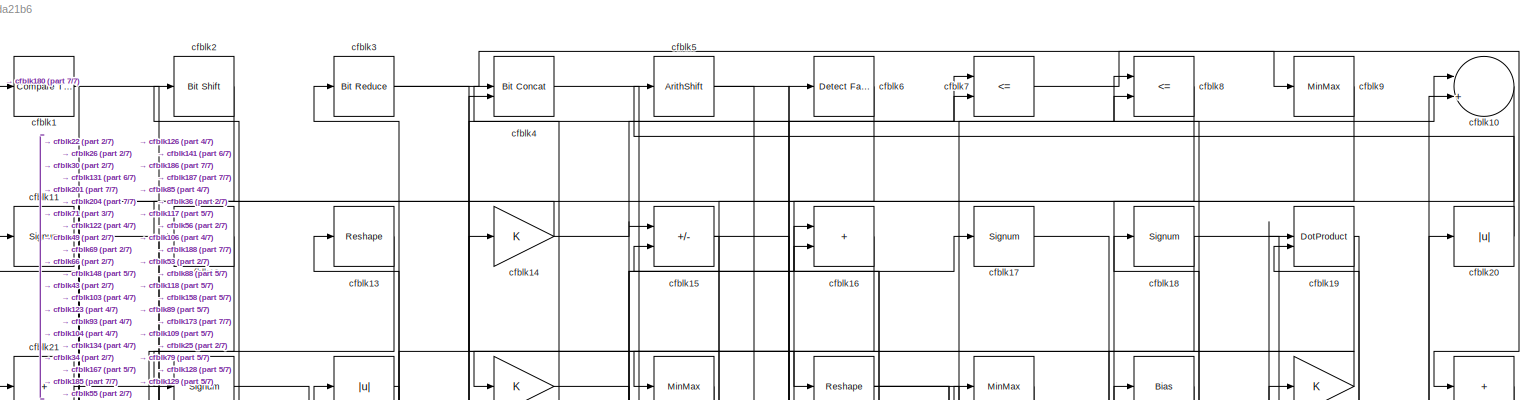
[diagram: root canvas - part 1/7, full width, top band]
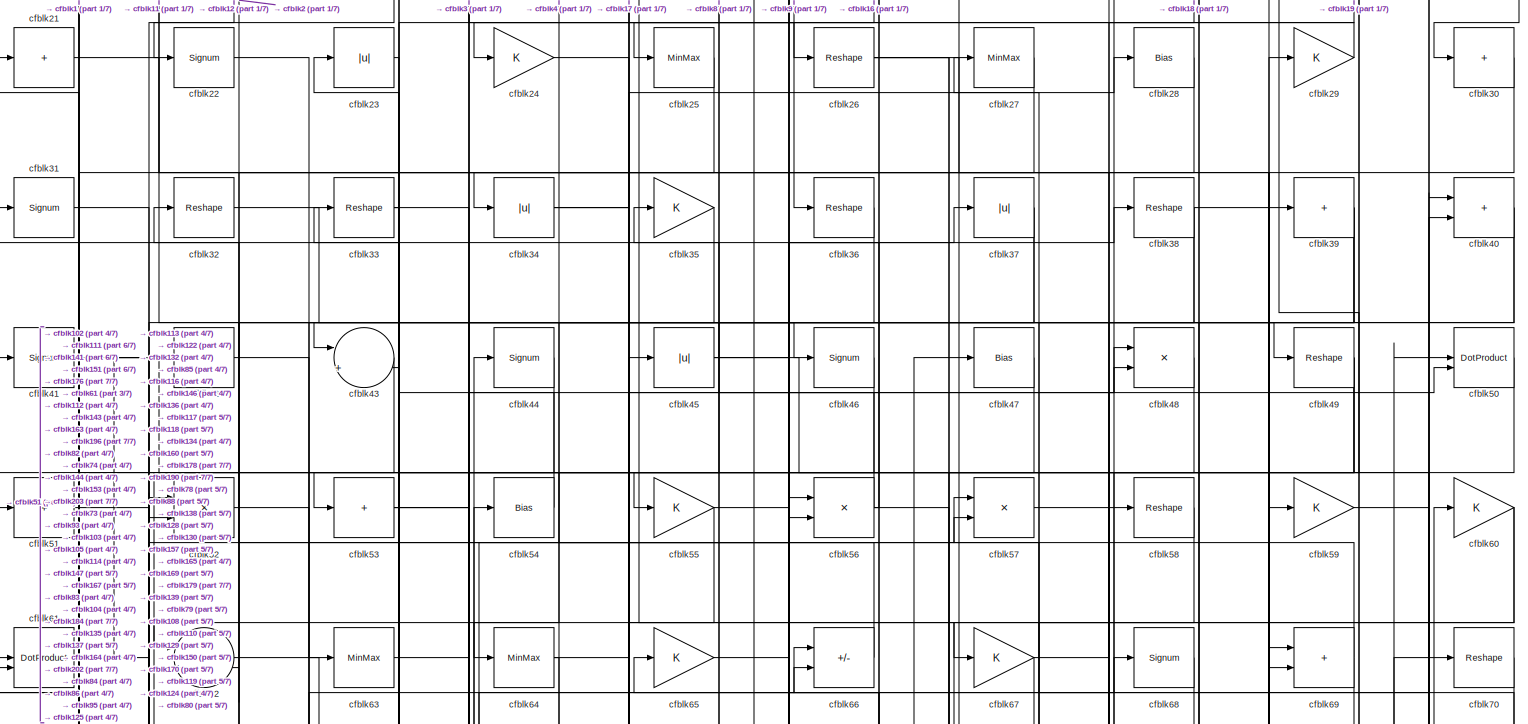
[diagram: root canvas - part 2/7, full width, top band]
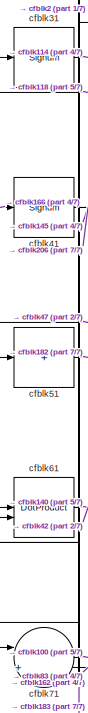
[diagram: root canvas - part 3/7, top left region]
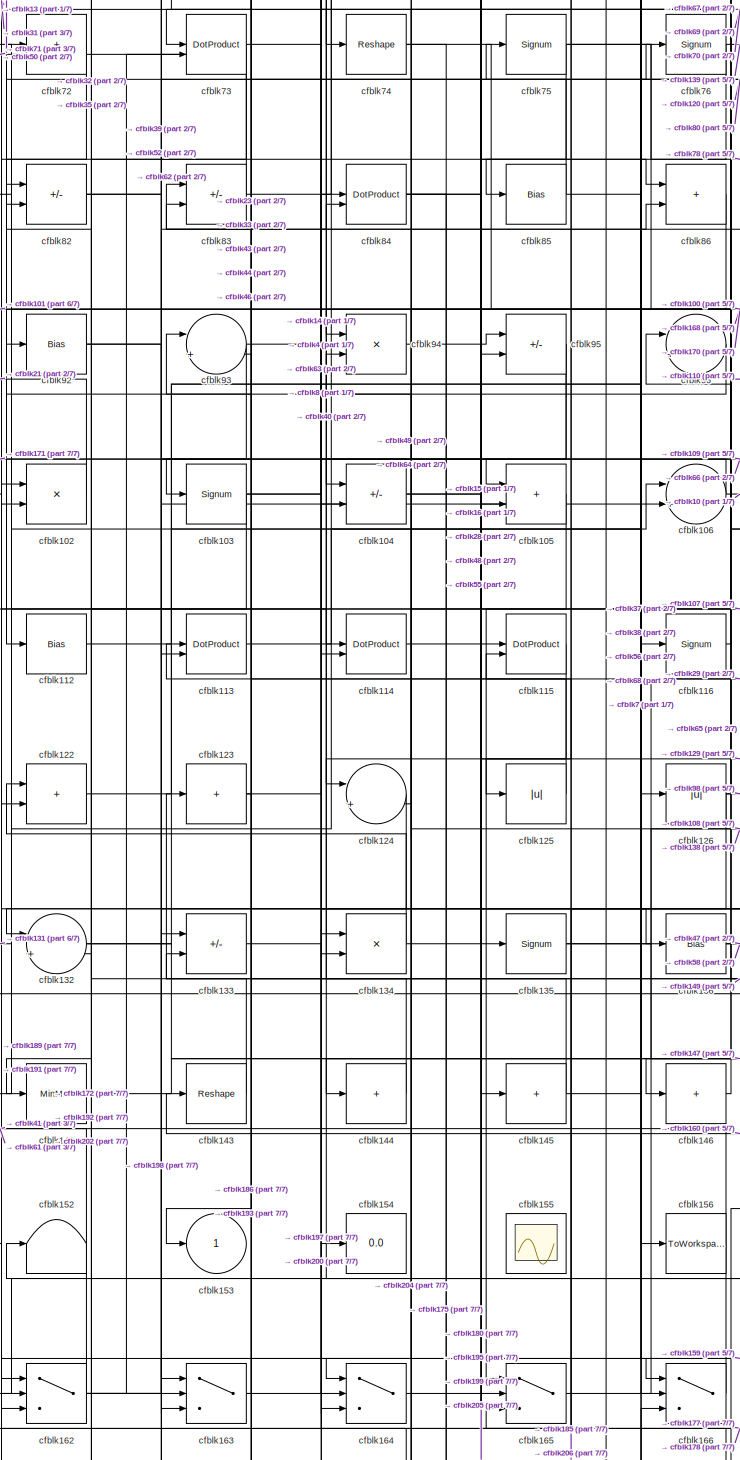
[diagram: root canvas - part 4/7, central region]
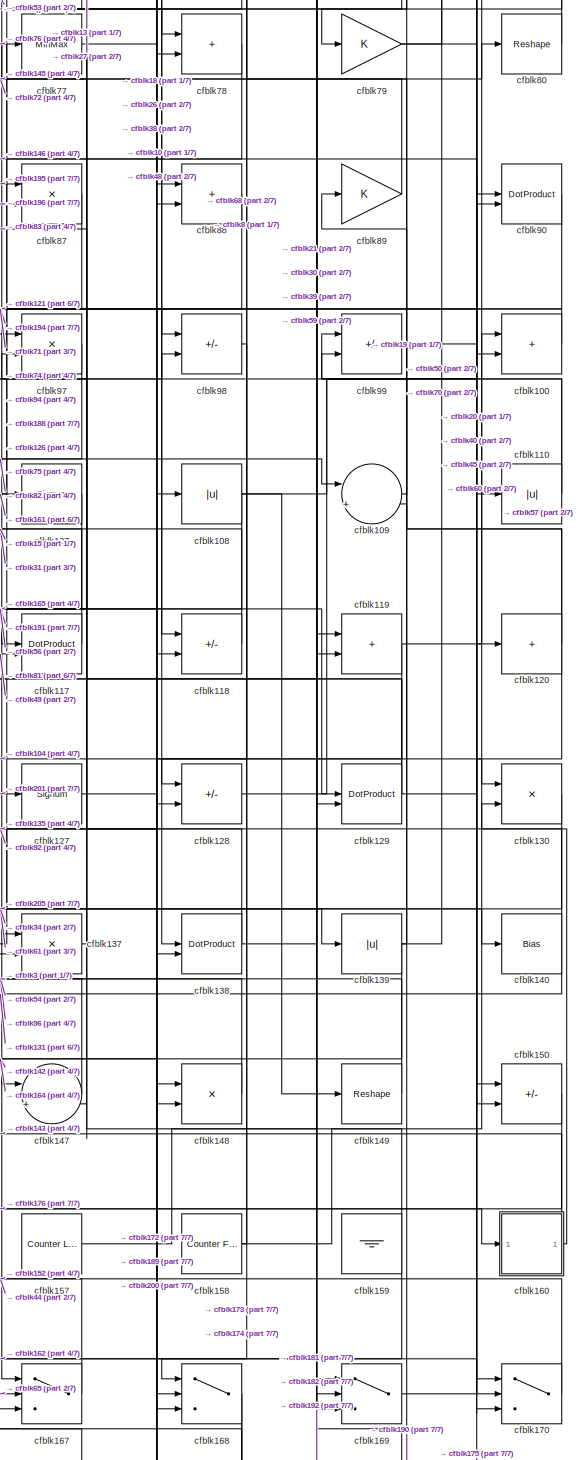
[diagram: root canvas - part 5/7, middle right region]
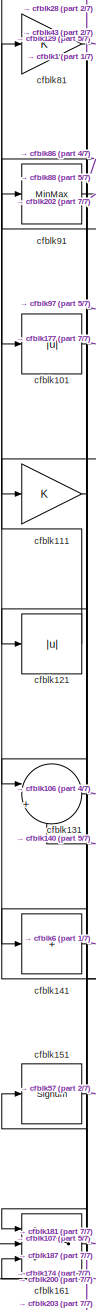
[diagram: root canvas - part 6/7, middle left region]
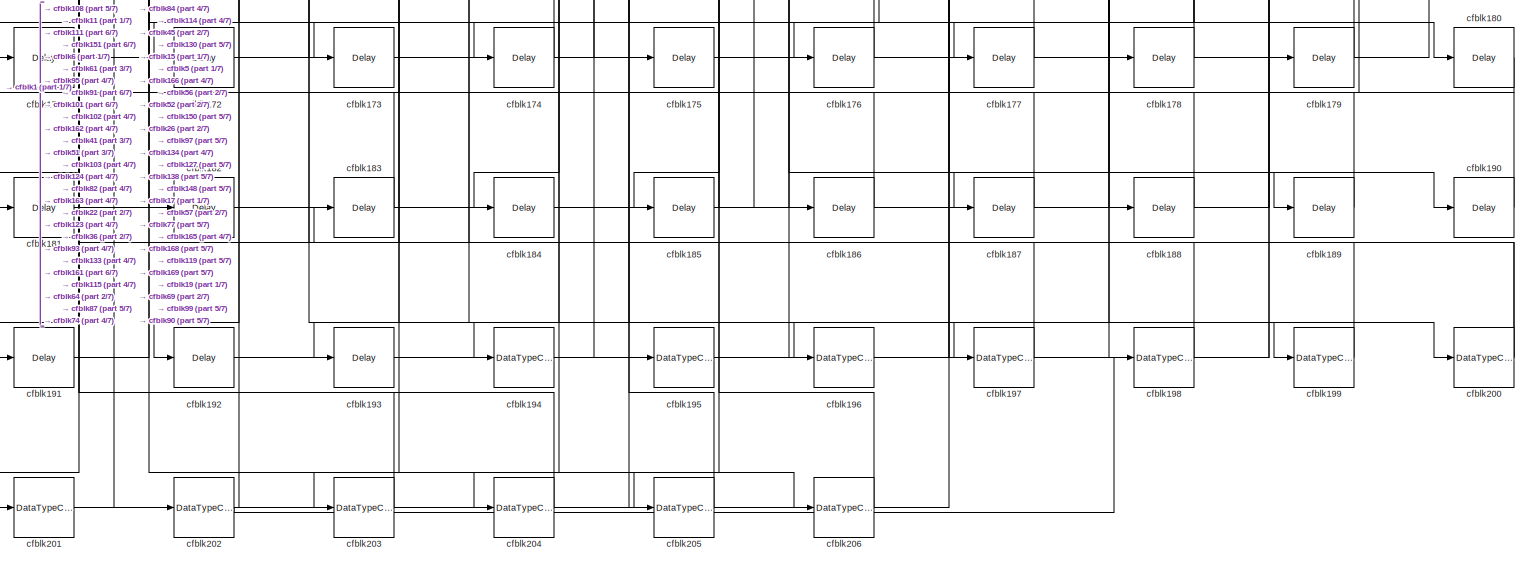
[diagram: root canvas - part 7/7, full width, bottom band]
MODEL slx_e3c43ada21b6
KIND model
CONFIG AbsTol = auto
CONFIG EnableMultiTasking = off
CONFIG FixedStep = auto
CONFIG MaxStep = auto
CONFIG MinStep = auto
CONFIG RelTol = 1e-3
CONFIG SampleTimeConstraint = Unconstrained
CONFIG SolverName = VariableStepAuto
CONFIG StartTime = 0.0
CONFIG StopTime = 10.0
BLOCK [Reference] cfblk1  REF=hdlsllib/Logic and Bit
Operations/Compare
To Zero
  SourceBlock = hdlsllib/Logic and Bit\nOperations/Compare\nTo Zero
  SourceType = Compare To Zero
BLOCK [Sum] cfblk10
  Inputs = |++
BLOCK [Sum] cfblk100
  IconShape = rectangular
BLOCK [Abs] cfblk101
  SaturateOnIntegerOverflow = off
BLOCK [Product] cfblk102
  Inputs = */
  RndMeth = Zero
  SaturateOnIntegerOverflow = on
BLOCK [Signum] cfblk103
BLOCK [Sum] cfblk104
  IconShape = rectangular
  Inputs = +-
BLOCK [Sum] cfblk105
  IconShape = rectangular
BLOCK [Sum] cfblk106
  Inputs = |++
BLOCK [Signum] cfblk107
BLOCK [Abs] cfblk108
  SaturateOnIntegerOverflow = off
BLOCK [Sum] cfblk109
  Inputs = |++
BLOCK [Signum] cfblk11
BLOCK [Abs] cfblk110
  SaturateOnIntegerOverflow = off
BLOCK [Gain] cfblk111
BLOCK [Bias] cfblk112
  Bias = 0.0
  SaturateOnIntegerOverflow = off
BLOCK [DotProduct] cfblk113
  OutDataTypeStr = Inherit: Inherit via internal rule
BLOCK [DotProduct] cfblk114
  OutDataTypeStr = Inherit: Inherit via internal rule
BLOCK [DotProduct] cfblk115
  OutDataTypeStr = Inherit: Inherit via internal rule
BLOCK [Signum] cfblk116
BLOCK [DotProduct] cfblk117
  OutDataTypeStr = Inherit: Inherit via internal rule
BLOCK [Sum] cfblk118
  IconShape = rectangular
  Inputs = +-
BLOCK [Sum] cfblk119
  IconShape = rectangular
BLOCK [Sum] cfblk12
  IconShape = rectangular
  Inputs = +
BLOCK [Sum] cfblk120
  IconShape = rectangular
  Inputs = +
BLOCK [Abs] cfblk121
  SaturateOnIntegerOverflow = off
BLOCK [Sum] cfblk122
  IconShape = rectangular
BLOCK [Sum] cfblk123
  IconShape = rectangular
  Inputs = +
BLOCK [Sum] cfblk124
  Inputs = |++
BLOCK [Abs] cfblk125
  SaturateOnIntegerOverflow = off
BLOCK [Abs] cfblk126
  SaturateOnIntegerOverflow = off
BLOCK [Signum] cfblk127
BLOCK [Sum] cfblk128
  IconShape = rectangular
  Inputs = +-
BLOCK [DotProduct] cfblk129
  OutDataTypeStr = Inherit: Inherit via internal rule
BLOCK [Reshape] cfblk13
BLOCK [Product] cfblk130
  Inputs = */
  RndMeth = Zero
  SaturateOnIntegerOverflow = on
BLOCK [Sum] cfblk131
  Inputs = |++
BLOCK [Sum] cfblk132
  Inputs = |++
BLOCK [Sum] cfblk133
  IconShape = rectangular
  Inputs = +-
BLOCK [Product] cfblk134
  Inputs = */
  RndMeth = Zero
  SaturateOnIntegerOverflow = on
BLOCK [Signum] cfblk135
BLOCK [Bias] cfblk136
  Bias = 0.0
  SaturateOnIntegerOverflow = off
BLOCK [Product] cfblk137
  Inputs = */
  RndMeth = Zero
  SaturateOnIntegerOverflow = on
BLOCK [DotProduct] cfblk138
  OutDataTypeStr = Inherit: Inherit via internal rule
BLOCK [Abs] cfblk139
  SaturateOnIntegerOverflow = off
BLOCK [Gain] cfblk14
BLOCK [Bias] cfblk140
  Bias = 0.0
  SaturateOnIntegerOverflow = off
BLOCK [Sum] cfblk141
  IconShape = rectangular
  Inputs = +
BLOCK [MinMax] cfblk142
BLOCK [Reshape] cfblk143
BLOCK [Sum] cfblk144
  IconShape = rectangular
  Inputs = +
BLOCK [Sum] cfblk145
  IconShape = rectangular
  Inputs = +
BLOCK [Sum] cfblk146
  IconShape = rectangular
  Inputs = +
BLOCK [Sum] cfblk147
  Inputs = |++
BLOCK [Product] cfblk148
  Inputs = */
  RndMeth = Zero
  SaturateOnIntegerOverflow = on
BLOCK [Reshape] cfblk149
BLOCK [Sum] cfblk15
  IconShape = rectangular
  Inputs = +-
BLOCK [Sum] cfblk150
  IconShape = rectangular
  Inputs = +-
BLOCK [Signum] cfblk151
BLOCK [Terminator] cfblk152
BLOCK [Outport] cfblk153
  VectorParamsAs1DForOutWhenUnconnected = off
BLOCK [Display] cfblk154
  Decimation = 1
BLOCK [Scope] cfblk155
  Floating = on
  NumInputPorts = 1
  ScopeSpecificationString = Simulink.scopes.TimeScopeBlockCfg('CurrentConfiguration', extmgr.ConfigurationSet(extmgr.Configuration('Core','General UI',true,'FigureColor',[0.156862745098039 0.156862745098039 0.156862745098039]),extmgr.Configuration('Core','Source UI',true),extmgr.Configuration('Sources','WiredSimulink',true,'DataLoggingVariableName','ScopeData1','DataLoggingSaveFormat','StructureWithTime','DataLoggingLimitDat...<+2713ch>
BLOCK [ToWorkspace] cfblk156
  MaxDataPoints = inf
  SampleTime = -1
  SaveFormat = Timeseries
  VariableName = simout
BLOCK [Reference] cfblk157  REF=hdlsllib/Sources/Counter
Limited
  SourceBlock = hdlsllib/Sources/Counter\nLimited
  SourceType = Counter Limited
BLOCK [Reference] cfblk158  REF=hdlsllib/Sources/Counter
Free-Running
  SourceBlock = hdlsllib/Sources/Counter\nFree-Running
  SourceType = Counter Free-Running
BLOCK [Ground] cfblk159
BLOCK [Sum] cfblk16
  IconShape = rectangular
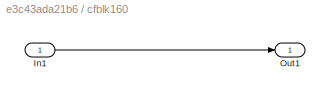
BLOCK [SubSystem] cfblk160
  LibrarySourceBlock = hdlsllib/Ports &\nSubsystems/Subsystem
BLOCK [Inport] cfblk160/In1
BLOCK [Outport] cfblk160/Out1
BLOCK [Switch] cfblk161
  InputSameDT = off
  SaturateOnIntegerOverflow = off
BLOCK [Switch] cfblk162
  InputSameDT = off
  SaturateOnIntegerOverflow = off
BLOCK [Switch] cfblk163
  InputSameDT = off
  SaturateOnIntegerOverflow = off
BLOCK [Switch] cfblk164
  InputSameDT = off
  SaturateOnIntegerOverflow = off
BLOCK [Switch] cfblk165
  InputSameDT = off
  SaturateOnIntegerOverflow = off
BLOCK [Switch] cfblk166
  InputSameDT = off
  SaturateOnIntegerOverflow = off
BLOCK [Switch] cfblk167
  InputSameDT = off
  SaturateOnIntegerOverflow = off
BLOCK [Switch] cfblk168
  InputSameDT = off
  SaturateOnIntegerOverflow = off
BLOCK [Switch] cfblk169
  InputSameDT = off
  SaturateOnIntegerOverflow = off
BLOCK [Signum] cfblk17
BLOCK [Switch] cfblk170
  InputSameDT = off
  SaturateOnIntegerOverflow = off
BLOCK [Delay] cfblk171
  InputPortMap = u0
  SampleTime = 1
BLOCK [Delay] cfblk172
  InputPortMap = u0
  SampleTime = 1
BLOCK [Delay] cfblk173
  InputPortMap = u0
  SampleTime = 1
BLOCK [Delay] cfblk174
  InputPortMap = u0
  SampleTime = 1
BLOCK [Delay] cfblk175
  InputPortMap = u0
  SampleTime = 1
BLOCK [Delay] cfblk176
  InputPortMap = u0
  SampleTime = 1
BLOCK [Delay] cfblk177
  InputPortMap = u0
  SampleTime = 1
BLOCK [Delay] cfblk178
  InputPortMap = u0
  SampleTime = 1
BLOCK [Delay] cfblk179
  InputPortMap = u0
  SampleTime = 1
BLOCK [Signum] cfblk18
BLOCK [Delay] cfblk180
  InputPortMap = u0
  SampleTime = 1
BLOCK [Delay] cfblk181
  InputPortMap = u0
  SampleTime = 1
BLOCK [Delay] cfblk182
  InputPortMap = u0
  SampleTime = 1
BLOCK [Delay] cfblk183
  InputPortMap = u0
  SampleTime = 1
BLOCK [Delay] cfblk184
  InputPortMap = u0
  SampleTime = 1
BLOCK [Delay] cfblk185
  InputPortMap = u0
  SampleTime = 1
BLOCK [Delay] cfblk186
  InputPortMap = u0
  SampleTime = 1
BLOCK [Delay] cfblk187
  InputPortMap = u0
  SampleTime = 1
BLOCK [Delay] cfblk188
  InputPortMap = u0
  SampleTime = 1
BLOCK [Delay] cfblk189
  InputPortMap = u0
  SampleTime = 1
BLOCK [DotProduct] cfblk19
  OutDataTypeStr = Inherit: Inherit via internal rule
BLOCK [Delay] cfblk190
  InputPortMap = u0
  SampleTime = 1
BLOCK [Delay] cfblk191
  InputPortMap = u0
  SampleTime = 1
BLOCK [Delay] cfblk192
  InputPortMap = u0
  SampleTime = 1
BLOCK [Delay] cfblk193
  InputPortMap = u0
  SampleTime = 1
BLOCK [DataTypeConversion] cfblk194
  RndMeth = Floor
  SaturateOnIntegerOverflow = off
BLOCK [DataTypeConversion] cfblk195
  OutDataTypeStr = uint8
  RndMeth = Floor
  SaturateOnIntegerOverflow = off
BLOCK [DataTypeConversion] cfblk196
  OutDataTypeStr = uint8
  RndMeth = Floor
  SaturateOnIntegerOverflow = off
BLOCK [DataTypeConversion] cfblk197
  OutDataTypeStr = uint8
  RndMeth = Floor
  SaturateOnIntegerOverflow = off
BLOCK [DataTypeConversion] cfblk198
  OutDataTypeStr = uint8
  RndMeth = Floor
  SaturateOnIntegerOverflow = off
BLOCK [DataTypeConversion] cfblk199
  OutDataTypeStr = uint8
  RndMeth = Floor
  SaturateOnIntegerOverflow = off
BLOCK [Reference] cfblk2  REF=hdlsllib/Logic and Bit
Operations/Bit Shift
  SourceBlock = hdlsllib/Logic and Bit\nOperations/Bit Shift
  SourceType = Bit Shift
BLOCK [Abs] cfblk20
  SaturateOnIntegerOverflow = off
BLOCK [DataTypeConversion] cfblk200
  RndMeth = Floor
  SaturateOnIntegerOverflow = off
BLOCK [DataTypeConversion] cfblk201
  OutDataTypeStr = uint8
  RndMeth = Floor
  SaturateOnIntegerOverflow = off
BLOCK [DataTypeConversion] cfblk202
  RndMeth = Floor
  SaturateOnIntegerOverflow = off
BLOCK [DataTypeConversion] cfblk203
  OutDataTypeStr = uint8
  RndMeth = Floor
  SaturateOnIntegerOverflow = off
BLOCK [DataTypeConversion] cfblk204
  OutDataTypeStr = uint8
  RndMeth = Floor
  SaturateOnIntegerOverflow = off
BLOCK [DataTypeConversion] cfblk205
  OutDataTypeStr = uint8
  RndMeth = Floor
  SaturateOnIntegerOverflow = off
BLOCK [DataTypeConversion] cfblk206
  OutDataTypeStr = uint8
  RndMeth = Floor
  SaturateOnIntegerOverflow = off
BLOCK [Sum] cfblk21
  IconShape = rectangular
  Inputs = +
BLOCK [Signum] cfblk22
BLOCK [Abs] cfblk23
  SaturateOnIntegerOverflow = off
BLOCK [Gain] cfblk24
BLOCK [MinMax] cfblk25
BLOCK [Reshape] cfblk26
BLOCK [MinMax] cfblk27
BLOCK [Bias] cfblk28
  Bias = 0.0
  SaturateOnIntegerOverflow = off
BLOCK [Gain] cfblk29
BLOCK [Reference] cfblk3  REF=hdlsllib/Logic and Bit
Operations/Bit Reduce
  SourceBlock = hdlsllib/Logic and Bit\nOperations/Bit Reduce
  SourceType = Bit Reduce
BLOCK [Sum] cfblk30
  IconShape = rectangular
  Inputs = +
BLOCK [Signum] cfblk31
BLOCK [Reshape] cfblk32
BLOCK [Reshape] cfblk33
BLOCK [Abs] cfblk34
  SaturateOnIntegerOverflow = off
BLOCK [Gain] cfblk35
BLOCK [Reshape] cfblk36
BLOCK [Abs] cfblk37
  SaturateOnIntegerOverflow = off
BLOCK [Reshape] cfblk38
BLOCK [Sum] cfblk39
  IconShape = rectangular
  Inputs = +
BLOCK [Reference] cfblk4  REF=hdlsllib/Logic and Bit
Operations/Bit Concat
  SourceBlock = hdlsllib/Logic and Bit\nOperations/Bit Concat
  SourceType = Bit Concat
BLOCK [Sum] cfblk40
  IconShape = rectangular
BLOCK [Signum] cfblk41
BLOCK [Sum] cfblk42
  IconShape = rectangular
  Inputs = +
BLOCK [Sum] cfblk43
  Inputs = |++
BLOCK [Signum] cfblk44
BLOCK [Abs] cfblk45
  SaturateOnIntegerOverflow = off
BLOCK [Signum] cfblk46
BLOCK [Bias] cfblk47
  Bias = 0.0
  SaturateOnIntegerOverflow = off
BLOCK [Product] cfblk48
  Inputs = */
  RndMeth = Zero
  SaturateOnIntegerOverflow = on
BLOCK [Reshape] cfblk49
BLOCK [ArithShift] cfblk5
  BitShiftNumber = 8
  InputPortMap = u0
BLOCK [DotProduct] cfblk50
  OutDataTypeStr = Inherit: Inherit via internal rule
BLOCK [Sum] cfblk51
  IconShape = rectangular
  Inputs = +
BLOCK [Product] cfblk52
  Inputs = */
  RndMeth = Zero
  SaturateOnIntegerOverflow = on
BLOCK [Sum] cfblk53
  IconShape = rectangular
  Inputs = +
BLOCK [Bias] cfblk54
  Bias = 0.0
  SaturateOnIntegerOverflow = off
BLOCK [Gain] cfblk55
BLOCK [Product] cfblk56
  Inputs = */
  RndMeth = Zero
  SaturateOnIntegerOverflow = on
BLOCK [Product] cfblk57
  Inputs = */
  RndMeth = Zero
  SaturateOnIntegerOverflow = on
BLOCK [Reshape] cfblk58
BLOCK [Gain] cfblk59
BLOCK [Reference] cfblk6  REF=hdlsllib/Logic and Bit
Operations/Detect Fall
Nonpositive
  SourceBlock = hdlsllib/Logic and Bit\nOperations/Detect Fall\nNonpositive
  SourceType = Detect Fall Nonpositive
BLOCK [Gain] cfblk60
BLOCK [DotProduct] cfblk61
  OutDataTypeStr = Inherit: Inherit via internal rule
BLOCK [Sum] cfblk62
  Inputs = |++
BLOCK [MinMax] cfblk63
BLOCK [MinMax] cfblk64
BLOCK [Gain] cfblk65
BLOCK [Sum] cfblk66
  IconShape = rectangular
  Inputs = +-
BLOCK [Gain] cfblk67
BLOCK [Signum] cfblk68
BLOCK [Sum] cfblk69
  IconShape = rectangular
BLOCK [RelationalOperator] cfblk7
  InputSameDT = off
  Operator = <=
  OutDataTypeStr = boolean
BLOCK [Reshape] cfblk70
BLOCK [Sum] cfblk71
  Inputs = |++
BLOCK [Sum] cfblk72
  IconShape = rectangular
  Inputs = +
BLOCK [DotProduct] cfblk73
  OutDataTypeStr = Inherit: Inherit via internal rule
BLOCK [Reshape] cfblk74
BLOCK [Signum] cfblk75
BLOCK [Signum] cfblk76
BLOCK [MinMax] cfblk77
BLOCK [Sum] cfblk78
  IconShape = rectangular
BLOCK [Gain] cfblk79
BLOCK [RelationalOperator] cfblk8
  InputSameDT = off
  Operator = <=
  OutDataTypeStr = boolean
BLOCK [Reshape] cfblk80
BLOCK [Gain] cfblk81
BLOCK [Sum] cfblk82
  IconShape = rectangular
  Inputs = +-
BLOCK [Sum] cfblk83
  IconShape = rectangular
  Inputs = +-
BLOCK [DotProduct] cfblk84
  OutDataTypeStr = Inherit: Inherit via internal rule
BLOCK [Bias] cfblk85
  Bias = 0.0
  SaturateOnIntegerOverflow = off
BLOCK [Sum] cfblk86
  IconShape = rectangular
BLOCK [Product] cfblk87
  Inputs = */
  RndMeth = Zero
  SaturateOnIntegerOverflow = on
BLOCK [Sum] cfblk88
  IconShape = rectangular
BLOCK [Gain] cfblk89
BLOCK [MinMax] cfblk9
BLOCK [DotProduct] cfblk90
  OutDataTypeStr = Inherit: Inherit via internal rule
BLOCK [MinMax] cfblk91
BLOCK [Bias] cfblk92
  Bias = 0.0
  SaturateOnIntegerOverflow = off
BLOCK [Sum] cfblk93
  Inputs = |++
BLOCK [Product] cfblk94
  Inputs = */
  RndMeth = Zero
  SaturateOnIntegerOverflow = on
BLOCK [Sum] cfblk95
  IconShape = rectangular
  Inputs = +-
BLOCK [Sum] cfblk96
  Inputs = |++
BLOCK [Product] cfblk97
  Inputs = */
  RndMeth = Zero
  SaturateOnIntegerOverflow = on
BLOCK [Sum] cfblk98
  IconShape = rectangular
  Inputs = +-
BLOCK [Sum] cfblk99
  IconShape = rectangular
  Inputs = +-
LINE cfblk100:1 -> cfblk94:1
LINE cfblk101:1 -> cfblk177:1
LINE cfblk102:1 -> cfblk21:1
NET cfblk103:1 -> cfblk192:1, cfblk48:1, cfblk8:2
NET cfblk104:1 -> cfblk129:2, cfblk15:1
LINE cfblk105:1 -> cfblk144:1
NET cfblk106:1 -> cfblk105:1, cfblk10:1
LINE cfblk107:1 -> cfblk165:1
NET cfblk108:1 -> cfblk149:1, cfblk191:1, cfblk40:2
LINE cfblk109:1 -> cfblk19:2
LINE cfblk10:1 -> cfblk118:1
NET cfblk110:1 -> cfblk75:1, cfblk99:1
LINE cfblk111:1 -> cfblk181:1
LINE cfblk112:1 -> cfblk56:2
LINE cfblk113:1 -> cfblk68:1
LINE cfblk114:1 -> cfblk180:1
LINE cfblk115:1 -> cfblk204:1
LINE cfblk116:1 -> cfblk65:1
LINE cfblk117:1 -> cfblk15:2
LINE cfblk118:1 -> cfblk31:1
NET cfblk119:1 -> cfblk128:2, cfblk60:1
LINE cfblk11:1 -> cfblk49:1
NET cfblk120:1 -> cfblk170:3, cfblk72:1, cfblk89:1
LINE cfblk121:1 -> cfblk81:1
LINE cfblk122:1 -> cfblk37:1
NET cfblk123:1 -> cfblk193:1, cfblk4:2
LINE cfblk124:1 -> cfblk172:1
LINE cfblk125:1 -> cfblk113:1
NET cfblk126:1 -> cfblk164:2, cfblk96:2, cfblk98:2
LINE cfblk127:1 -> cfblk200:1
LINE cfblk128:1 -> cfblk10:2
NET cfblk129:1 -> cfblk13:1, cfblk20:1, cfblk27:1
LINE cfblk12:1 -> cfblk22:1
LINE cfblk130:1 -> cfblk205:1
LINE cfblk131:1 -> cfblk106:1
NET cfblk132:1 -> cfblk156:1, cfblk38:1
LINE cfblk133:1 -> cfblk197:1
NET cfblk134:1 -> cfblk122:1, cfblk16:2
NET cfblk135:1 -> cfblk108:1, cfblk168:3
NET cfblk136:1 -> cfblk47:1, cfblk58:1
LINE cfblk137:1 -> cfblk77:1
NET cfblk138:1 -> cfblk59:1, cfblk92:1
NET cfblk139:1 -> cfblk109:2, cfblk164:1, cfblk50:1
LINE cfblk13:1 -> cfblk122:2
NET cfblk140:1 -> cfblk131:2, cfblk97:2
LINE cfblk141:1 -> cfblk6:1
LINE cfblk142:1 -> cfblk147:1
LINE cfblk143:1 -> cfblk32:1
LINE cfblk144:1 -> cfblk43:2
NET cfblk145:1 -> cfblk123:1, cfblk80:1
LINE cfblk146:1 -> cfblk66:2
LINE cfblk147:1 -> cfblk54:1
LINE cfblk148:1 -> cfblk3:1
LINE cfblk149:1 -> cfblk96:1
NET cfblk14:1 -> cfblk12:1, cfblk7:1
LINE cfblk150:1 -> cfblk176:1
LINE cfblk151:1 -> cfblk57:2
LINE cfblk157:1 -> cfblk39:1
NET cfblk158:1 -> cfblk100:1, cfblk18:1
NET cfblk159:1 -> cfblk162:3, cfblk83:1
NET cfblk15:1 -> cfblk126:1, cfblk185:1
LINE cfblk160/In1:1 -> cfblk160/Out1:1
NET cfblk160:1 -> cfblk130:2, cfblk143:1
LINE cfblk161:1 -> cfblk107:1
NET cfblk162:1 -> cfblk166:1, cfblk166:2, cfblk61:1, cfblk73:2, cfblk76:1, cfblk84:2
NET cfblk163:1 -> cfblk83:2, cfblk86:2
LINE cfblk164:1 -> cfblk28:1
LINE cfblk165:1 -> cfblk29:1
LINE cfblk166:1 -> cfblk41:1
LINE cfblk167:1 -> cfblk44:1
NET cfblk168:1 -> cfblk173:1, cfblk174:1
LINE cfblk169:1 -> cfblk120:1
LINE cfblk16:1 -> cfblk43:1
LINE cfblk170:1 -> cfblk152:1
LINE cfblk171:1 -> cfblk163:2
LINE cfblk172:1 -> cfblk148:1
LINE cfblk173:1 -> cfblk19:1
LINE cfblk174:1 -> cfblk161:2
LINE cfblk175:1 -> cfblk90:2
LINE cfblk176:1 -> cfblk52:1
LINE cfblk177:1 -> cfblk134:1
LINE cfblk178:1 -> cfblk165:2
LINE cfblk179:1 -> cfblk69:1
LINE cfblk17:1 -> cfblk188:1
LINE cfblk180:1 -> cfblk1:1
LINE cfblk181:1 -> cfblk119:1
LINE cfblk182:1 -> cfblk169:3
LINE cfblk183:1 -> cfblk61:2
LINE cfblk184:1 -> cfblk56:1
LINE cfblk185:1 -> cfblk165:3
LINE cfblk186:1 -> cfblk93:1
LINE cfblk187:1 -> cfblk161:3
LINE cfblk188:1 -> cfblk97:1
LINE cfblk189:1 -> cfblk162:1
NET cfblk18:1 -> cfblk53:1, cfblk88:2
LINE cfblk190:1 -> cfblk99:2
LINE cfblk191:1 -> cfblk102:1
LINE cfblk192:1 -> cfblk169:2
LINE cfblk193:1 -> cfblk166:3
NET cfblk194:1 -> cfblk138:2, cfblk179:1
LINE cfblk195:1 -> cfblk87:1
LINE cfblk196:1 -> cfblk87:2
LINE cfblk197:1 -> cfblk183:1
LINE cfblk198:1 -> cfblk133:1
LINE cfblk199:1 -> cfblk133:2
NET cfblk19:1 -> cfblk25:1, cfblk79:1
NET cfblk1:1 -> cfblk131:1, cfblk69:2
NET cfblk200:1 -> cfblk151:1, cfblk84:1
LINE cfblk201:1 -> cfblk127:1
NET cfblk202:1 -> cfblk198:1, cfblk45:1, cfblk82:2
LINE cfblk203:1 -> cfblk91:1
LINE cfblk204:1 -> cfblk11:1
LINE cfblk205:1 -> cfblk115:1
LINE cfblk206:1 -> cfblk115:2
LINE cfblk20:1 -> cfblk5:1
LINE cfblk21:1 -> cfblk169:1
LINE cfblk22:1 -> cfblk196:1
LINE cfblk23:1 -> cfblk153:1
LINE cfblk24:1 -> cfblk46:1
LINE cfblk25:1 -> cfblk62:1
NET cfblk26:1 -> cfblk160:1, cfblk190:1, cfblk88:1
LINE cfblk27:1 -> cfblk34:1
LINE cfblk28:1 -> cfblk141:1
LINE cfblk29:1 -> cfblk24:1
LINE cfblk2:1 -> cfblk71:1
LINE cfblk30:1 -> cfblk119:2
LINE cfblk31:1 -> cfblk114:1
LINE cfblk32:1 -> cfblk135:1
NET cfblk33:1 -> cfblk103:1, cfblk105:2
NET cfblk34:1 -> cfblk137:1, cfblk17:1
LINE cfblk35:1 -> cfblk132:1
LINE cfblk36:1 -> cfblk203:1
NET cfblk37:1 -> cfblk164:3, cfblk52:2
NET cfblk38:1 -> cfblk130:1, cfblk64:1, cfblk78:2
NET cfblk39:1 -> cfblk117:1, cfblk128:1, cfblk163:3
NET cfblk3:1 -> cfblk26:1, cfblk30:1
NET cfblk40:1 -> cfblk125:1, cfblk82:1
NET cfblk41:1 -> cfblk145:1, cfblk206:1
LINE cfblk42:1 -> cfblk63:1
LINE cfblk43:1 -> cfblk111:1
LINE cfblk44:1 -> cfblk73:1
NET cfblk45:1 -> cfblk110:1, cfblk170:2
LINE cfblk46:1 -> cfblk93:2
LINE cfblk47:1 -> cfblk51:1
LINE cfblk48:1 -> cfblk138:1
NET cfblk49:1 -> cfblk104:1, cfblk104:2, cfblk117:2
LINE cfblk4:1 -> cfblk167:1
LINE cfblk50:1 -> cfblk112:1
LINE cfblk51:1 -> cfblk182:1
LINE cfblk52:1 -> cfblk163:1
NET cfblk53:1 -> cfblk137:2, cfblk78:1
LINE cfblk54:1 -> cfblk23:1
NET cfblk55:1 -> cfblk116:1, cfblk95:2
NET cfblk56:1 -> cfblk118:2, cfblk16:1, cfblk35:1
LINE cfblk57:1 -> cfblk178:1
LINE cfblk58:1 -> cfblk62:2
LINE cfblk59:1 -> cfblk150:1
NET cfblk5:1 -> cfblk186:1, cfblk187:1
NET cfblk60:1 -> cfblk147:2, cfblk67:1
NET cfblk61:1 -> cfblk140:1, cfblk42:1
LINE cfblk62:1 -> cfblk74:1
LINE cfblk63:1 -> cfblk114:2
NET cfblk64:1 -> cfblk184:1, cfblk86:1
LINE cfblk65:1 -> cfblk167:2
LINE cfblk66:1 -> cfblk2:1
NET cfblk67:1 -> cfblk134:2, cfblk50:2
LINE cfblk68:1 -> cfblk167:3
NET cfblk69:1 -> cfblk102:2, cfblk4:1
LINE cfblk6:1 -> cfblk201:1
LINE cfblk70:1 -> cfblk124:1
LINE cfblk71:1 -> cfblk100:2
LINE cfblk72:1 -> cfblk162:2
NET cfblk73:1 -> cfblk142:1, cfblk154:1
NET cfblk74:1 -> cfblk175:1, cfblk98:1
NET cfblk75:1 -> cfblk132:2, cfblk168:2, cfblk170:1
NET cfblk76:1 -> cfblk139:1, cfblk85:1
LINE cfblk77:1 -> cfblk189:1
LINE cfblk78:1 -> cfblk146:1
NET cfblk79:1 -> cfblk150:2, cfblk70:1
LINE cfblk7:1 -> cfblk9:1
LINE cfblk80:1 -> cfblk57:1
LINE cfblk81:1 -> cfblk129:1
NET cfblk82:1 -> cfblk109:1, cfblk66:1
NET cfblk83:1 -> cfblk40:1, cfblk71:2
NET cfblk84:1 -> cfblk195:1, cfblk199:1, cfblk48:2
NET cfblk85:1 -> cfblk33:1, cfblk7:2
LINE cfblk86:1 -> cfblk101:1
LINE cfblk87:1 -> cfblk194:1
LINE cfblk88:1 -> cfblk121:1
LINE cfblk89:1 -> cfblk8:1
LINE cfblk8:1 -> cfblk55:1
LINE cfblk90:1 -> cfblk148:2
LINE cfblk91:1 -> cfblk202:1
NET cfblk92:1 -> cfblk106:2, cfblk136:1
NET cfblk93:1 -> cfblk113:2, cfblk14:1
LINE cfblk94:1 -> cfblk95:1
NET cfblk95:1 -> cfblk124:2, cfblk171:1
LINE cfblk96:1 -> cfblk94:2
LINE cfblk97:1 -> cfblk161:1
LINE cfblk98:1 -> cfblk168:1
LINE cfblk99:1 -> cfblk90:1
LINE cfblk9:1 -> cfblk36:1
note: NET lines group one-source signal fan-out (src -> all destinations, sorted); 1:1 wires keep LINE
